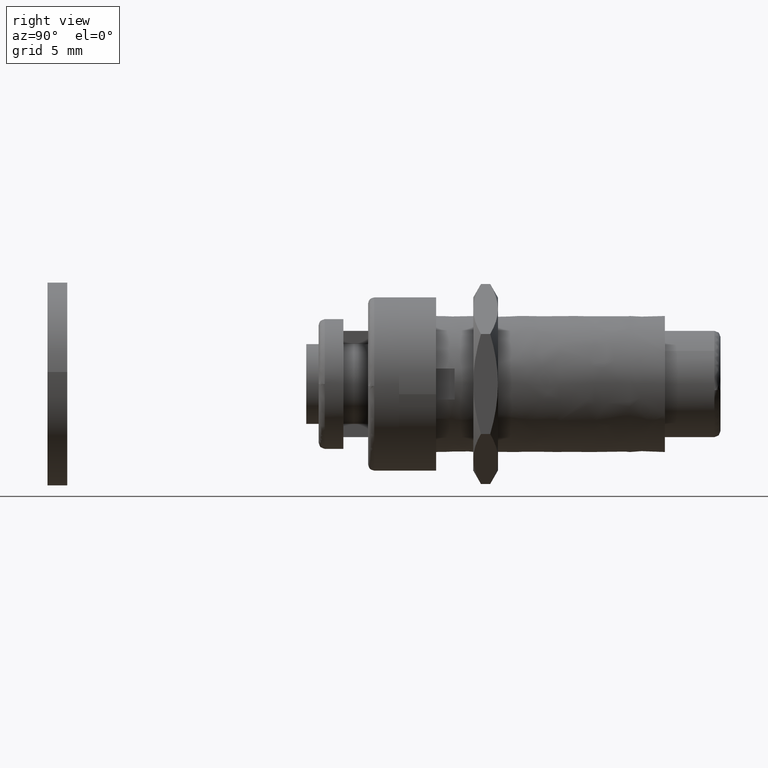
[diagram: clean part render]
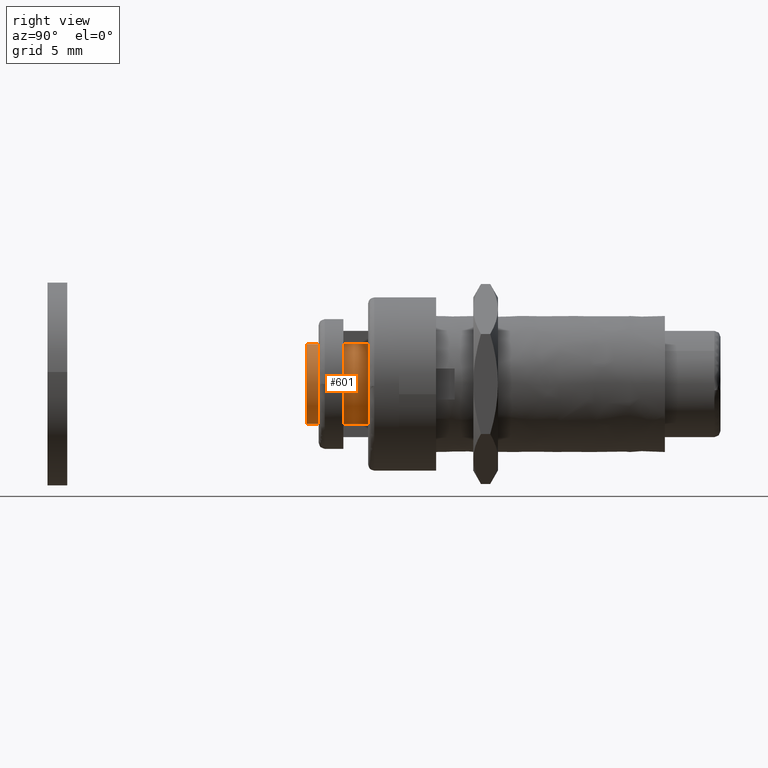
[diagram: same view with one face highlighted and labeled with its STEP entity id]
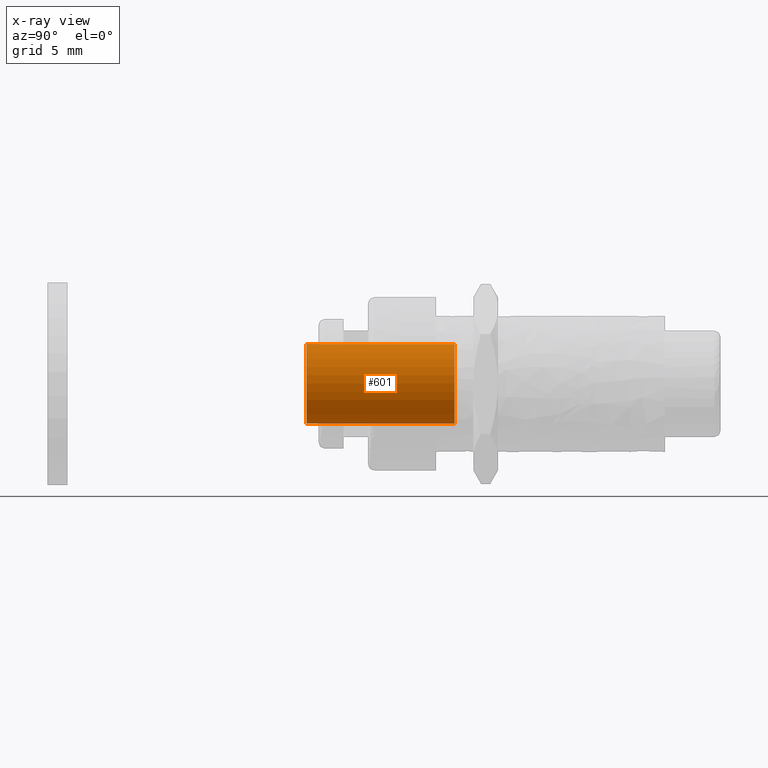
[diagram: x-ray of the same camera — body ghosted, the highlighted face saturated]
A machine part, right view. The second image highlights one B-rep face of the part: STEP entity #601.
The next image is the same camera in x-ray: the body ghosted, the highlighted face saturated — about 0% of this face is hidden behind the body in this view.
In plain terms, the highlighted face is a freeform B-spline surface patch.
Its self-contained STEP definition (entity closure, byte-faithful):
#498=CARTESIAN_POINT('',(-1.350002707586292,-5.0,3.229162846545475));
#499=VERTEX_POINT('',#498);
#500=CARTESIAN_POINT('',(-1.350002707586292,-5.0,-3.229162846545475));
#501=VERTEX_POINT('',#500);
#502=CARTESIAN_POINT('',(-1.350002707586293,-5.0,3.229162846545476));
#503=CARTESIAN_POINT('',(-3.500000000000000,-5.0,2.330322402754674));
#504=CARTESIAN_POINT('',(-3.500000000000000,-5.0,0.0));
#505=CARTESIAN_POINT('',(-3.500000000000001,-5.0,-2.330322402754674));
#506=CARTESIAN_POINT('',(-1.350002707586292,-5.0,-3.229162846545476));
#514=(BOUNDED_CURVE()B_SPLINE_CURVE(2,(#502,#503,#504,#505,#506),.UNSPECIFIED.,.F.,.U.)B_SPLINE_CURVE_WITH_KNOTS((3,2,3),(0.0,0.500000000000000,1.0),.UNSPECIFIED.)CURVE()GEOMETRIC_REPRESENTATION_ITEM()RATIONAL_B_SPLINE_CURVE((1.0,0.832380639884893,1.0,0.832380639884893,1.0))REPRESENTATION_ITEM(''));
#515=EDGE_CURVE('',#499,#501,#514,.T.);
#530=CARTESIAN_POINT('',(-1.350002707586292,7.0,3.229162846545475));
#531=VERTEX_POINT('',#530);
#532=CARTESIAN_POINT('',(-1.350002707586292,7.0,-3.229162846545475));
#533=VERTEX_POINT('',#532);
#534=CARTESIAN_POINT('',(-1.350002707586293,7.0,3.229162846545476));
#535=CARTESIAN_POINT('',(-3.500000000000000,7.0,2.330322402754674));
#536=CARTESIAN_POINT('',(-3.500000000000000,7.0,0.0));
#537=CARTESIAN_POINT('',(-3.500000000000001,7.0,-2.330322402754674));
#538=CARTESIAN_POINT('',(-1.350002707586292,7.0,-3.229162846545476));
#546=(BOUNDED_CURVE()B_SPLINE_CURVE(2,(#534,#535,#536,#537,#538),.UNSPECIFIED.,.F.,.U.)B_SPLINE_CURVE_WITH_KNOTS((3,2,3),(0.0,0.500000000000000,1.0),.UNSPECIFIED.)CURVE()GEOMETRIC_REPRESENTATION_ITEM()RATIONAL_B_SPLINE_CURVE((1.0,0.832380639884893,1.0,0.832380639884893,1.0))REPRESENTATION_ITEM(''));
#547=EDGE_CURVE('',#531,#533,#546,.T.);
#563=CARTESIAN_POINT('',(-1.350002707586292,7.0,-3.229162846545475));
#564=CARTESIAN_POINT('',(-1.350002707586292,-5.0,-3.229162846545475));
#565=QUASI_UNIFORM_CURVE('',1,(#563,#564),.UNSPECIFIED.,.F.,.U.);
#566=EDGE_CURVE('',#533,#501,#565,.T.);
#569=CARTESIAN_POINT('',(-1.350002707586292,7.0,3.229162846545475));
#570=CARTESIAN_POINT('',(-1.350002707586292,-5.0,3.229162846545475));
#571=QUASI_UNIFORM_CURVE('',1,(#569,#570),.UNSPECIFIED.,.F.,.U.);
#572=EDGE_CURVE('',#531,#499,#571,.T.);
#577=CARTESIAN_POINT('',(-1.243551656199553,7.300000000000001,-3.271632509675154));
#578=CARTESIAN_POINT('',(-1.243551656199553,-5.307500000000003,-3.271632509675154));
#579=CARTESIAN_POINT('',(-3.555712915437247,7.300000000000001,-2.392777089690660));
#580=CARTESIAN_POINT('',(-3.555712915437247,-5.307500000000005,-2.392777089690660));
#581=CARTESIAN_POINT('',(-3.499082619876759,7.300000000000001,0.080130014828330));
#582=CARTESIAN_POINT('',(-3.499082619876759,-5.307500000000003,0.080130014828330));
#583=CARTESIAN_POINT('',(-3.442452324316272,7.300000000000001,2.553037119347319));
#584=CARTESIAN_POINT('',(-3.442452324316272,-5.307500000000005,2.553037119347319));
#585=CARTESIAN_POINT('',(-1.092483902881522,7.300000000000001,3.325128406835554));
#586=CARTESIAN_POINT('',(-1.092483902881522,-5.307500000000003,3.325128406835554));
#594=(BOUNDED_SURFACE()B_SPLINE_SURFACE(1,2,((#577,#579,#581,#583,#585),(#578,#580,#582,#584,#586)),.UNSPECIFIED.,.F.,.F.,.U.)B_SPLINE_SURFACE_WITH_KNOTS((2,2),(3,2,3),(0.0,12.607500000000000),(0.0,4.447785881349693,8.895571762699387),.UNSPECIFIED.)GEOMETRIC_REPRESENTATION_ITEM()RATIONAL_B_SPLINE_SURFACE(((1.0,0.816641555161679,1.0,0.816641555161679,1.0),(1.0,0.816641555161679,1.0,0.816641555161679,1.0)))REPRESENTATION_ITEM('')SURFACE());
#595=ORIENTED_EDGE('',*,*,#515,.F.);
#596=ORIENTED_EDGE('',*,*,#572,.F.);
#597=ORIENTED_EDGE('',*,*,#547,.T.);
#598=ORIENTED_EDGE('',*,*,#566,.T.);
#599=EDGE_LOOP('',(#595,#596,#597,#598));
#600=FACE_OUTER_BOUND('',#599,.T.);
#601=ADVANCED_FACE('',(#600),#594,.T.);